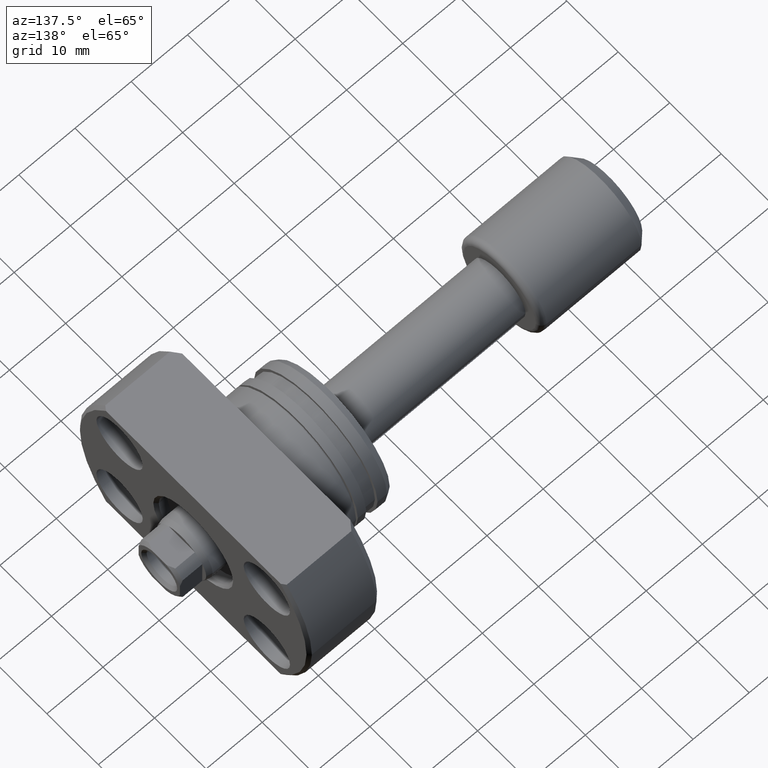
[diagram: clean part render]
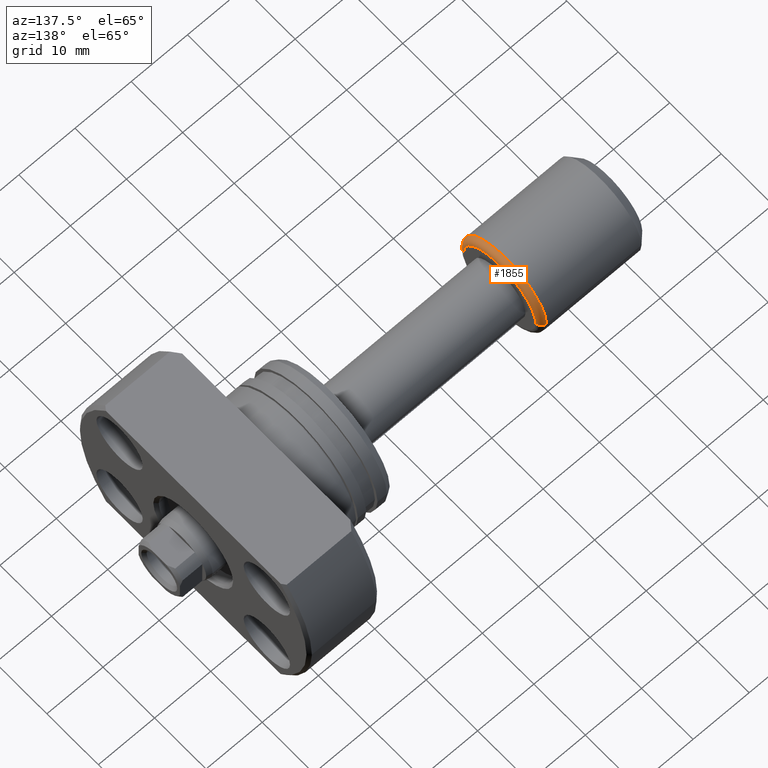
[diagram: same view with one face highlighted and labeled with its STEP entity id]
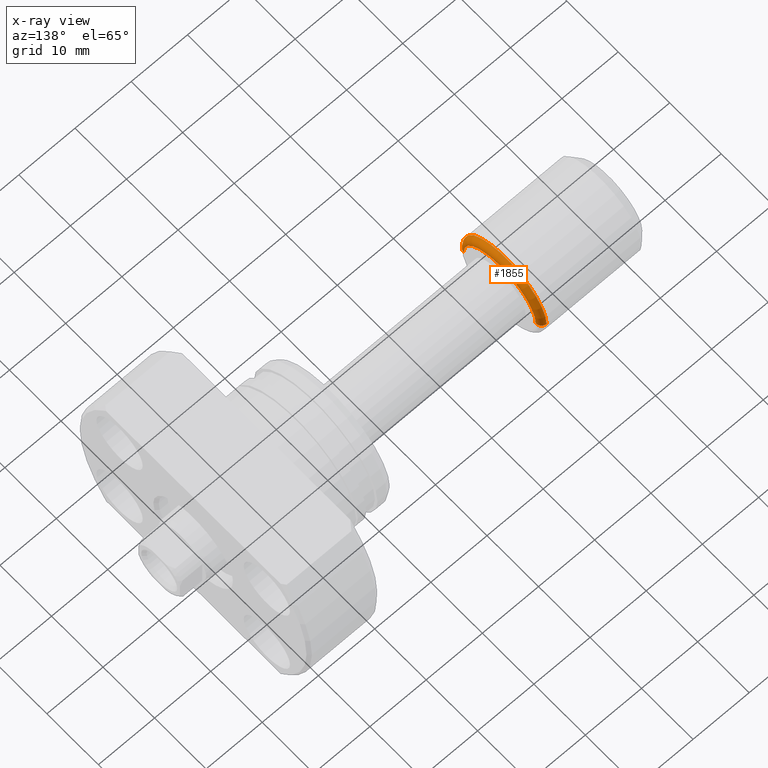
[diagram: x-ray of the same camera — body ghosted, the highlighted face saturated]
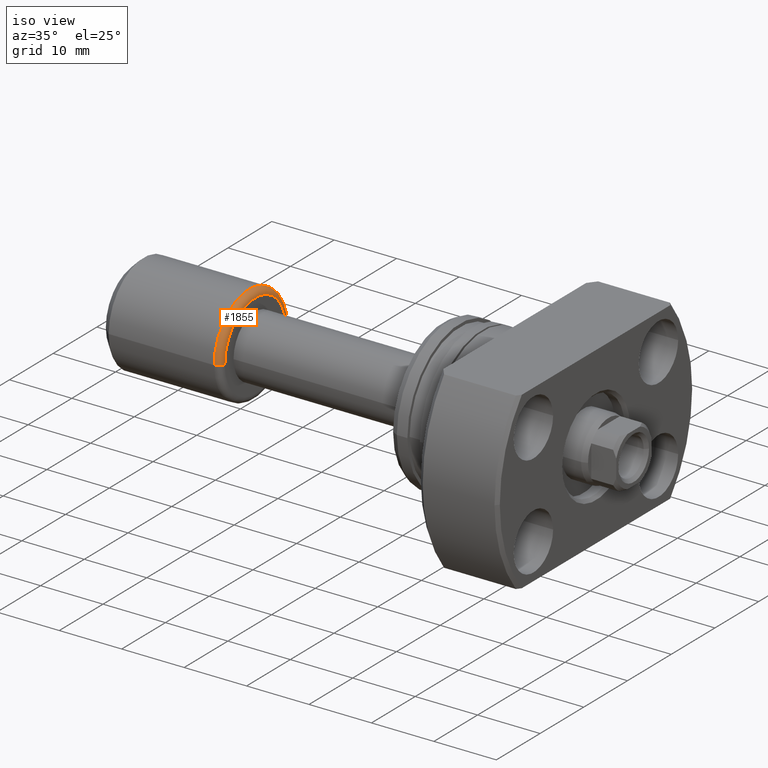
[diagram: same view with one face highlighted and labeled with its STEP entity id]
A machine part, auxiliary view. The second image highlights one B-rep face of the part: STEP entity #1855.
The next image is the same camera in x-ray: the body ghosted, the highlighted face saturated — about 0% of this face is hidden behind the body in this view.
A second angle (iso view) of the same face is appended — the face is thin or edge-on in the first view.
In plain terms, the highlighted toroidal blend (fillet) surface has major radius 7 mm and minor (blend) radius 1 mm.
Its self-contained STEP definition (entity closure, byte-faithful):
#5 = CARTESIAN_POINT ( 'NONE',  ( 18.40000000000006253, 6.999999999999996447, 8.572527594031468259E-16 ) ) ;
#19 = DIRECTION ( 'NONE',  ( -1.000000000000000000, -1.069542322069065801E-17, -0.000000000000000000 ) ) ;
#32 = CARTESIAN_POINT ( 'NONE',  ( 19.40000000000006253, -6.999999999999996447, 0.000000000000000000 ) ) ;
#252 = FACE_OUTER_BOUND ( 'NONE', #1548, .T. ) ;
#393 = VERTEX_POINT ( 'NONE', #638 ) ;
#436 = CARTESIAN_POINT ( 'NONE',  ( 18.40000000000006253, -7.999999999999996447, 0.000000000000000000 ) ) ;
#440 = TOROIDAL_SURFACE ( 'NONE', #707, 6.999999999999996447, 1.000000000000000444 ) ;
#560 = AXIS2_PLACEMENT_3D ( 'NONE', #2257, #2504, #2442 ) ;
#638 = CARTESIAN_POINT ( 'NONE',  ( 18.40000000000006253, 7.999999999999996447, 9.797174393178821713E-16 ) ) ;
#706 = ORIENTED_EDGE ( 'NONE', *, *, #2881, .T. ) ;
#707 = AXIS2_PLACEMENT_3D ( 'NONE', #1218, #19, #2189 ) ;
#1218 = CARTESIAN_POINT ( 'NONE',  ( 18.40000000000006253, 0.000000000000000000, 0.000000000000000000 ) ) ;
#1249 = CIRCLE ( 'NONE', #2533, 1.000000000000000888 ) ;
#1253 = DIRECTION ( 'NONE',  ( -1.000000000000000000, -1.069542322069065801E-17, -0.000000000000000000 ) ) ;
#1291 = AXIS2_PLACEMENT_3D ( 'NONE', #1970, #1253, #2254 ) ;
#1448 = DIRECTION ( 'NONE',  ( 0.000000000000000000, -1.000000000000000000, -1.224646799147353454E-16 ) ) ;
#1544 = CIRCLE ( 'NONE', #1291, 7.999999999999996447 ) ;
#1548 = EDGE_LOOP ( 'NONE', ( #1897, #706, #2723, #3043 ) ) ;
#1855 = ADVANCED_FACE ( 'NONE', ( #252 ), #440, .T. ) ;
#1897 = ORIENTED_EDGE ( 'NONE', *, *, #2972, .T. ) ;
#1970 = CARTESIAN_POINT ( 'NONE',  ( 18.40000000000006253, 1.967957872607087643E-16, 0.000000000000000000 ) ) ;
#2042 = VERTEX_POINT ( 'NONE', #3021 ) ;
#2189 = DIRECTION ( 'NONE',  ( 1.069542322069065801E-17, -1.000000000000000000, 0.000000000000000000 ) ) ;
#2254 = DIRECTION ( 'NONE',  ( 0.000000000000000000, -1.000000000000000000, 0.000000000000000000 ) ) ;
#2257 = CARTESIAN_POINT ( 'NONE',  ( 19.40000000000006253, 2.074912104813994331E-16, 0.000000000000000000 ) ) ;
#2329 = EDGE_CURVE ( 'NONE', #2349, #393, #1544, .T. ) ;
#2349 = VERTEX_POINT ( 'NONE', #436 ) ;
#2442 = DIRECTION ( 'NONE',  ( 0.000000000000000000, -1.000000000000000000, 0.000000000000000000 ) ) ;
#2488 = AXIS2_PLACEMENT_3D ( 'NONE', #5, #3011, #1448 ) ;
#2504 = DIRECTION ( 'NONE',  ( -1.000000000000000000, -1.069542322069065801E-17, -0.000000000000000000 ) ) ;
#2515 = DIRECTION ( 'NONE',  ( -1.000000000000000000, 0.000000000000000000, 0.000000000000000000 ) ) ;
#2533 = AXIS2_PLACEMENT_3D ( 'NONE', #3034, #3085, #2515 ) ;
#2583 = CIRCLE ( 'NONE', #560, 6.999999999999996447 ) ;
#2723 = ORIENTED_EDGE ( 'NONE', *, *, #2329, .F. ) ;
#2881 = EDGE_CURVE ( 'NONE', #2042, #393, #2898, .T. ) ;
#2898 = CIRCLE ( 'NONE', #2488, 1.000000000000000000 ) ;
#2953 = VERTEX_POINT ( 'NONE', #32 ) ;
#2972 = EDGE_CURVE ( 'NONE', #2953, #2042, #2583, .T. ) ;
#3011 = DIRECTION ( 'NONE',  ( 1.309811581274509052E-33, -1.224646799147353207E-16, 1.000000000000000000 ) ) ;
#3021 = CARTESIAN_POINT ( 'NONE',  ( 19.40000000000006253, 6.999999999999996447, 9.184850993605144000E-16 ) ) ;
#3034 = CARTESIAN_POINT ( 'NONE',  ( 18.40000000000006253, -6.999999999999996447, 0.000000000000000000 ) ) ;
#3043 = ORIENTED_EDGE ( 'NONE', *, *, #3065, .F. ) ;
#3065 = EDGE_CURVE ( 'NONE', #2953, #2349, #1249, .T. ) ;
#3085 = DIRECTION ( 'NONE',  ( 0.000000000000000000, 0.000000000000000000, -1.000000000000000000 ) ) ;